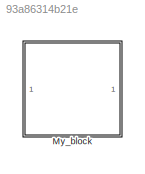
MODEL slx_93a86314b21e
KIND library
CONFIG AbsTol = auto
CONFIG EnableMultiTasking = off
CONFIG FixedStep = auto
CONFIG MaxStep = auto
CONFIG MinStep = auto
CONFIG RelTol = 1e-3
CONFIG SampleTimeConstraint = Unconstrained
CONFIG SolverName = VariableStepAuto
CONFIG StartTime = 0.0
CONFIG StopTime = 10.0
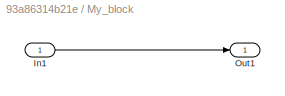
BLOCK [SubSystem] My_block
BLOCK [Inport] My_block/In1
BLOCK [Outport] My_block/Out1
LINE My_block/In1:1 -> My_block/Out1:1
